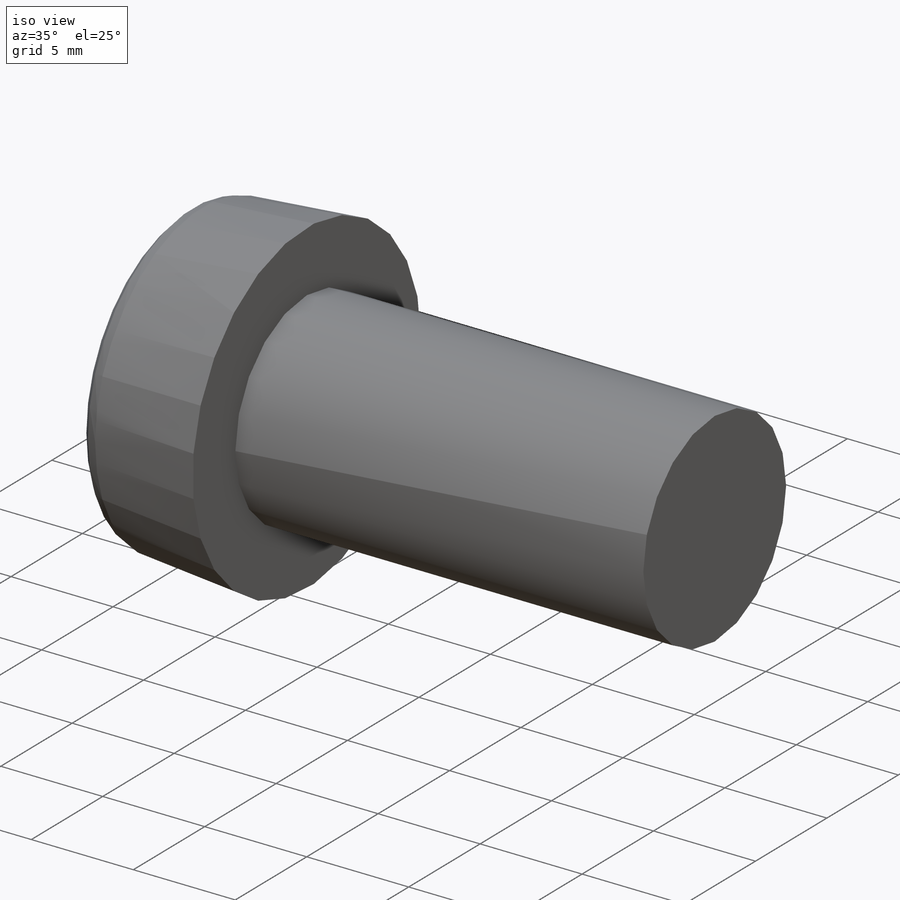
[diagram: iso view]
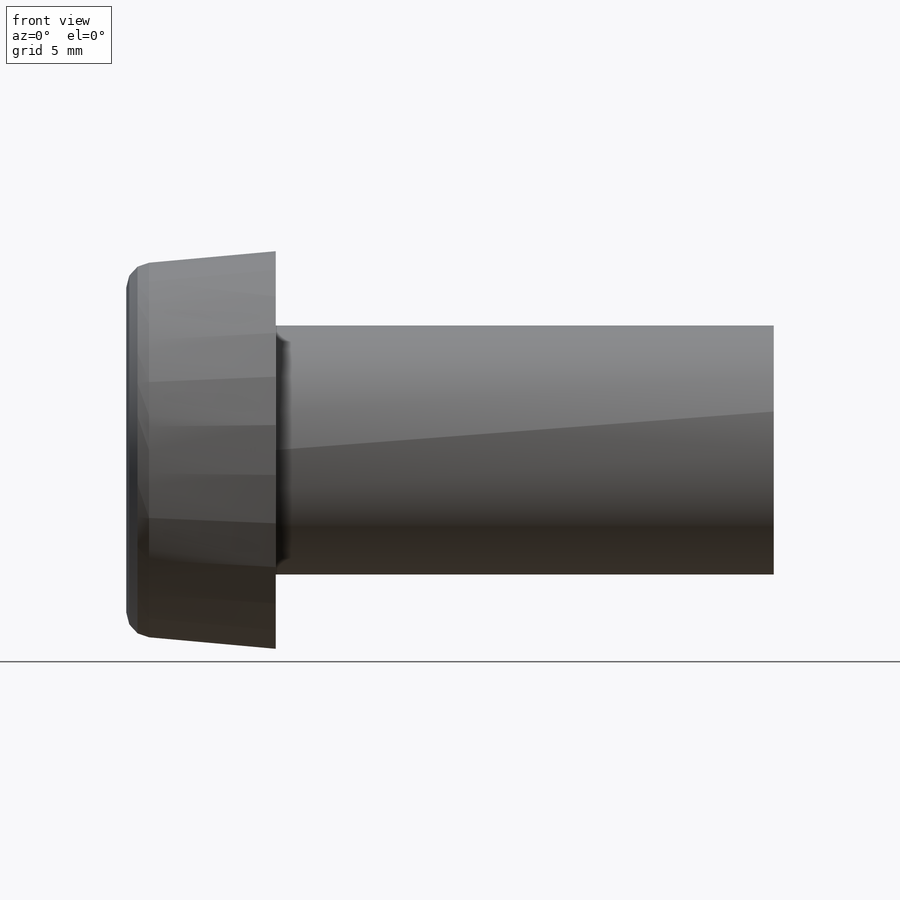
[diagram: front view]
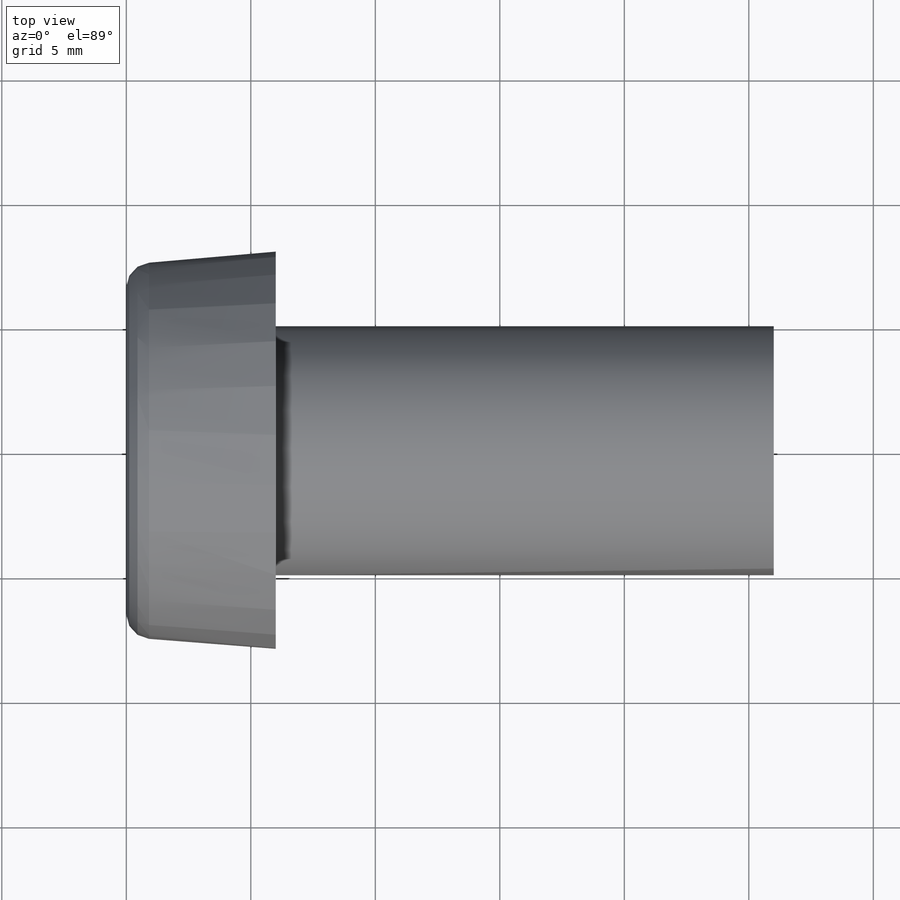
[diagram: top view]
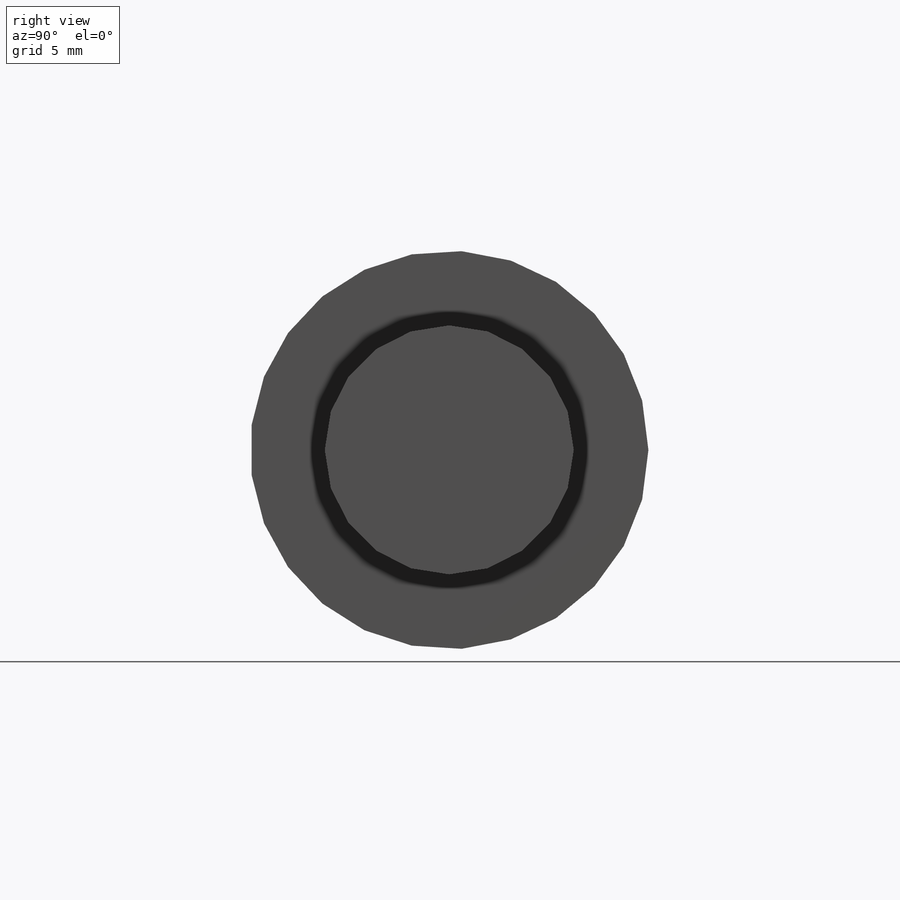
[diagram: right view]
SOLIDWORKS PART (.sldprt)
format: sldprt  version: not decoded by parser v0  size: 470,528 bytes
history: native  units: mm
features: sketch x8, plane x2, material x1, extrude x1, revolve x1, thread x1, cut_extrude x1, fillet x1, cut_revolve x1, pattern_linear x1 (+12 scaffold rows collapsed)
feature tree (30):
  scaffold x12  (default folders/planes/origin — collapsed)
  material  "材质 <未指定>"
  plane  "Plane1"  Offset=6mm
  sketch  "Sketch1"  dims[dk=16.0mm]
  extrude  "BaseHead"  [1 undecoded]
  sketch  "Sketch2"  dims[D1=~6.07578mm]
  sketch  "Sketch8"  dims[c1.r=0.4mm c1.a=2.0mm c1.D1=~0.211861mm c2.D1=45.0deg c2.d=10.0mm c2.da=6.8mm c2.D4=~5.346209mm c2.l=20.0mm c2.a=2.0mm c3.D1=20.0mm c3.D2=20.0mm c4.D1=20.0mm c4.D2=20.0mm c5.D1=20.0mm c5.D2=20.0mm c5.l=20.0mm c6.D1=~2.665841mm c6.D4=9.026mm]
  revolve  "Revolve1"  [1 undecoded]
  thread  "ThreadCosmetic1"  Diameter=20mm bb=20mm THD_MINOR=8.376mm  [1 undecoded]
  sketch  "Sketch4"  dims[c1.B=4.15mm c2.B=6.62mm c3.B=4.15mm c3.D1=~2.30625mm c4.D1=30.0deg]
  cut_extrude  "Socket"  Depth=3mm t=3mm
  sketch  "Sketch5"  dims[D1=0.0mm]
  plane  "Plane2"  Offset=1mm
  sketch  "Sketch7"
  sketch  "Sketch6"  dims[c1.d1=8.376mm c1.b=10.0mm c1.D3=15.0mm c1.D2=15.0mm c1.x=3.8mm c1.D4=~7.020039mm c2.b=10.0mm c2.D4=~65.032562mm c2.D3=10.0mm c3.D4=10.0mm c3.D3=10.0mm c4.D4=10.0mm c4.b=38.0mm c4.D3=10.0mm]
  fillet  "HeadFillet2"  Radius=1mm
  sketch  "Sketch9"  dims[D1=0.812mm D2=10.0mm]
  cut_revolve  "Cut-Revolve10"  Angle=360deg
  pattern_linear  "LPattern10"  Count1=21 Count2=1 Spacing1=0.9744mm Spacing2=50mm
decode coverage: 12 of 15 modeling features carry decoded parameters
note: ~ marks probable driven/reference dimensions
note: 3 parameter values undecoded
note: suppression state not decoded; provenance and decode notes live in map.json
